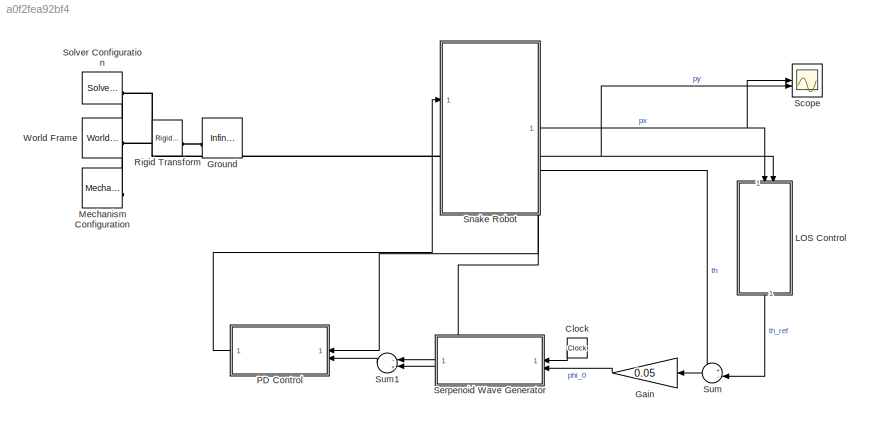
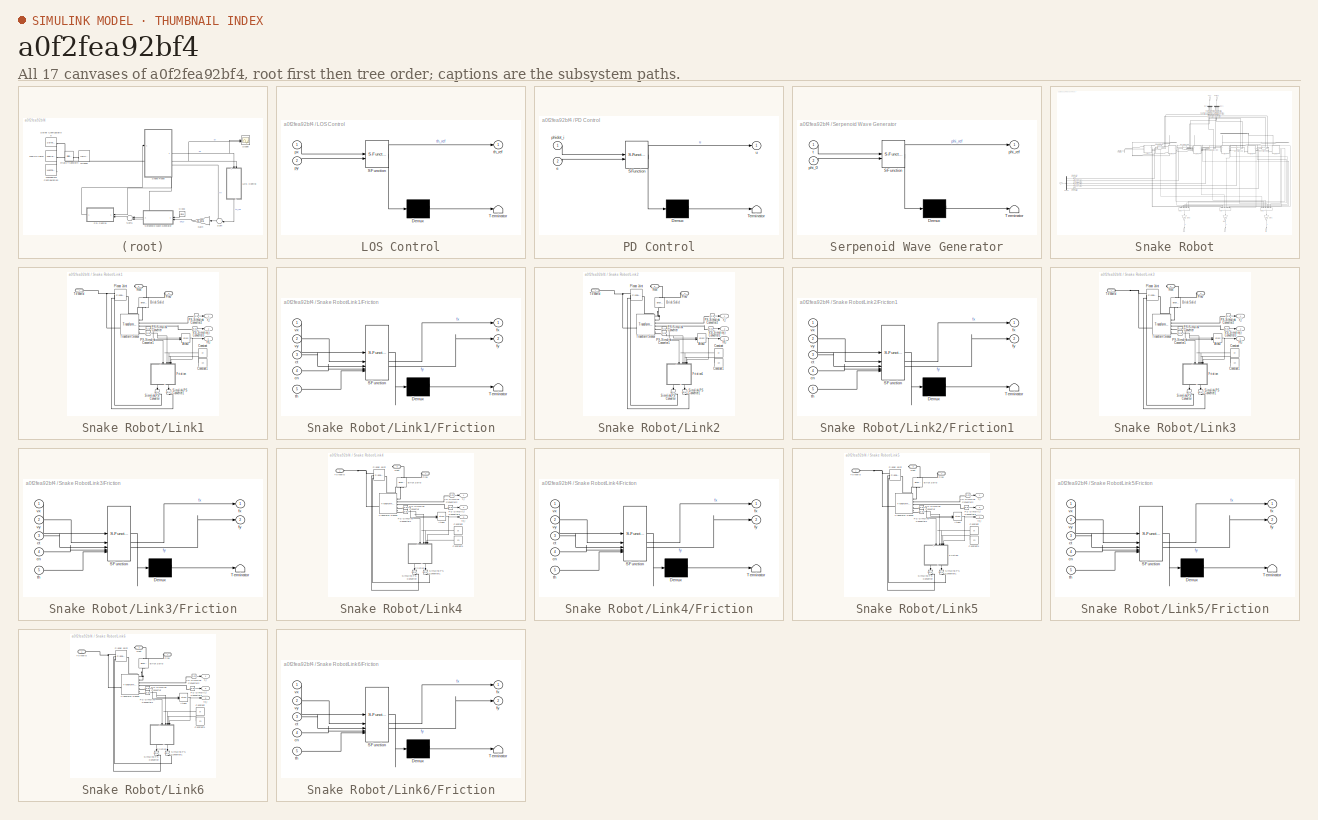
[diagram: thumbnail index - all 17 canvases of the model, root first then tree order]
MODEL slx_a0f2fea92bf4
KIND model
CONFIG AbsTol = auto
CONFIG EnableMultiTasking = off
CONFIG FixedStep = auto
CONFIG MaxStep = auto
CONFIG MinStep = auto
CONFIG RelTol = auto
CONFIG SampleTimeConstraint = Unconstrained
CONFIG SolverName = ode23tb
CONFIG StartTime = 0.0
CONFIG StopTime = 1500
BLOCK [Clock] Clock
  NameLocation = top
BLOCK [Gain] Gain
  Gain = 0.05
  NameLocation = top
BLOCK [Reference] Ground  REF=sm_lib/Curves and Surfaces/Infinite Plane
  SourceBlock = sm_lib/Curves and Surfaces/Infinite Plane
  SourceType = Infinite Plane
BLOCK [SubSystem] LOS Control
  ErrorFcn = Stateflow.Translate.translate
  NameLocation = right
  PermitHierarchicalResolution = ExplicitOnly
  SFBlockType = MATLAB Function
  TreatAsAtomicUnit = on
BLOCK [Demux] LOS Control/ Demux 
  Outputs = 1
BLOCK [S-Function] LOS Control/ SFunction 
  EnableBusSupport = on
  FunctionName = sf_sfun
  PortCounts = [2 2]
  SFcnIsStateOwnerBlock = off
  SFunctionDeploymentMode = off
  Tag = Stateflow S-Function 4
BLOCK [Terminator] LOS Control/ Terminator 
BLOCK [Inport] LOS Control/px
BLOCK [Inport] LOS Control/py
  Port = 2
BLOCK [Outport] LOS Control/th_ref
BLOCK [Reference] Mechanism Configuration  REF=sm_lib/Utilities/Mechanism
Configuration
  SourceBlock = sm_lib/Utilities/Mechanism\nConfiguration
  SourceType = Mechanism\nConfiguration
BLOCK [SubSystem] PD Control
  ErrorFcn = Stateflow.Translate.translate
  PermitHierarchicalResolution = ExplicitOnly
  SFBlockType = MATLAB Function
  TreatAsAtomicUnit = on
BLOCK [Demux] PD Control/ Demux 
  Outputs = 1
BLOCK [S-Function] PD Control/ SFunction 
  EnableBusSupport = on
  FunctionName = sf_sfun
  PortCounts = [2 2]
  SFcnIsStateOwnerBlock = off
  SFunctionDeploymentMode = off
  Tag = Stateflow S-Function 6
BLOCK [Terminator] PD Control/ Terminator 
BLOCK [Inport] PD Control/e
  Port = 2
BLOCK [Inport] PD Control/phidot_i
BLOCK [Outport] PD Control/u
BLOCK [Reference] Rigid Transform  REF=sm_lib/Frames and
Transforms/Rigid
Transform
  SourceBlock = sm_lib/Frames and\nTransforms/Rigid\nTransform
  SourceType = Rigid\nTransform
BLOCK [Scope] Scope
  Floating = off
  NumInputPorts = 2
  ScopeSpecificationString = Simulink.scopes.TimeScopeBlockCfg('CurrentConfiguration', extmgr.ConfigurationSet(extmgr.Configuration('Core','General UI',true),extmgr.Configuration('Core','Source UI',true),extmgr.Configuration('Sources','WiredSimulink',true),extmgr.Configuration('Visuals','Time Domain',true,'SerializedDisplays',{struct('MinYLimReal','-1.56577','MaxYLimReal','13.09189','YLabelReal','','MinYLimMag','0.00000','Max...<+1532ch>
BLOCK [SubSystem] Serpenoid Wave Generator
  ErrorFcn = Stateflow.Translate.translate
  PermitHierarchicalResolution = ExplicitOnly
  SFBlockType = MATLAB Function
  TreatAsAtomicUnit = on
BLOCK [Demux] Serpenoid Wave Generator/ Demux 
  Outputs = 1
BLOCK [S-Function] Serpenoid Wave Generator/ SFunction 
  EnableBusSupport = on
  FunctionName = sf_sfun
  PortCounts = [2 2]
  SFcnIsStateOwnerBlock = off
  SFunctionDeploymentMode = off
  Tag = Stateflow S-Function 5
BLOCK [Terminator] Serpenoid Wave Generator/ Terminator 
BLOCK [Inport] Serpenoid Wave Generator/phi_0
  Port = 2
BLOCK [Outport] Serpenoid Wave Generator/phi_ref
BLOCK [Inport] Serpenoid Wave Generator/t
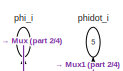
[diagram: Snake Robot - part 1/4, top center region]
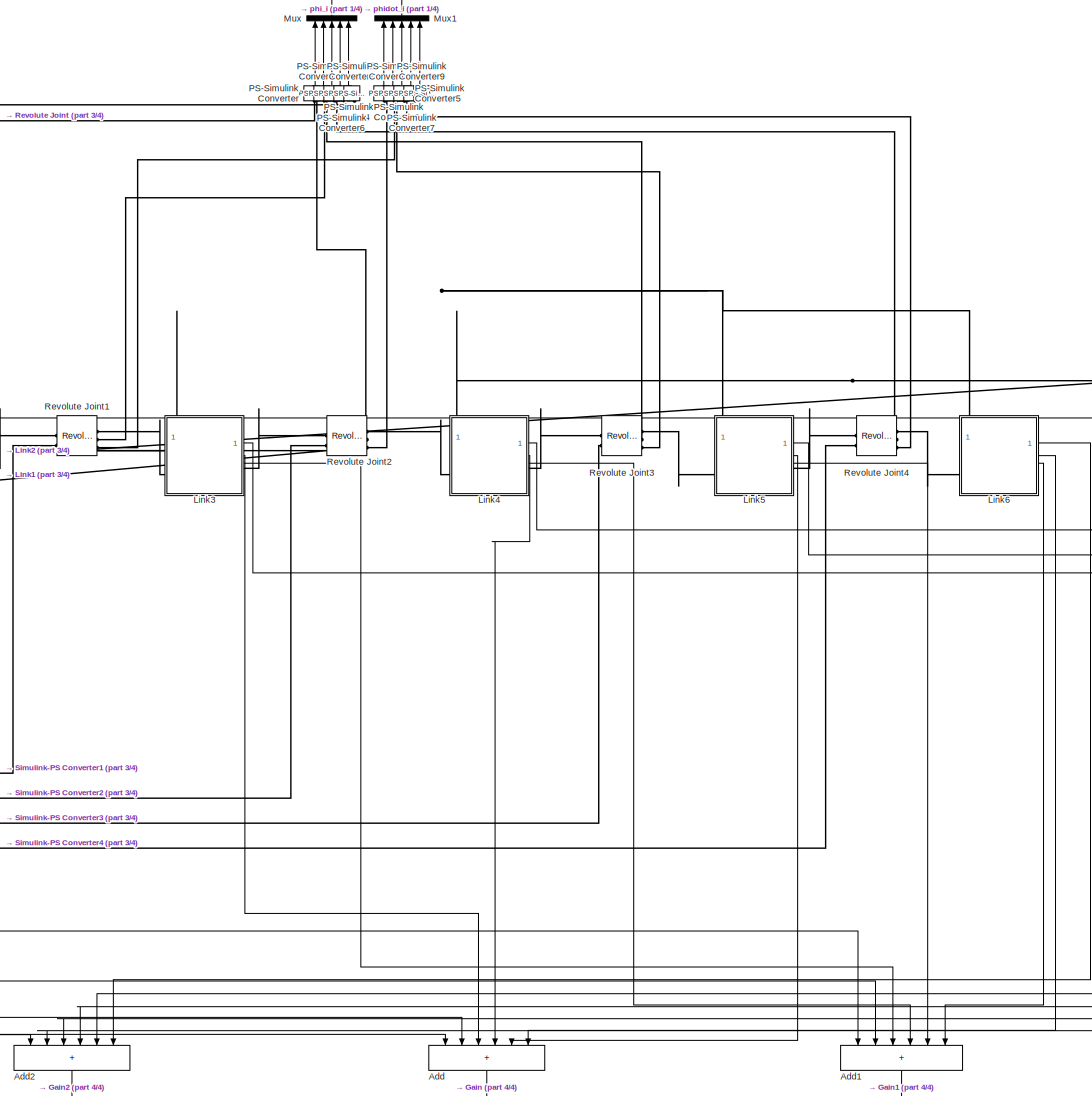
[diagram: Snake Robot - part 2/4, right side, full height]
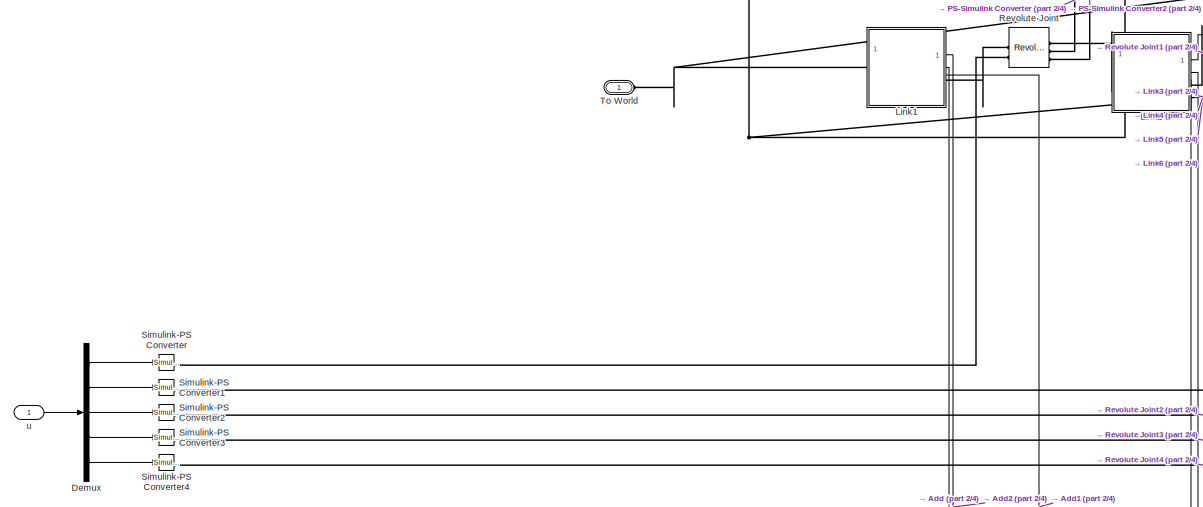
[diagram: Snake Robot - part 3/4, middle left region]
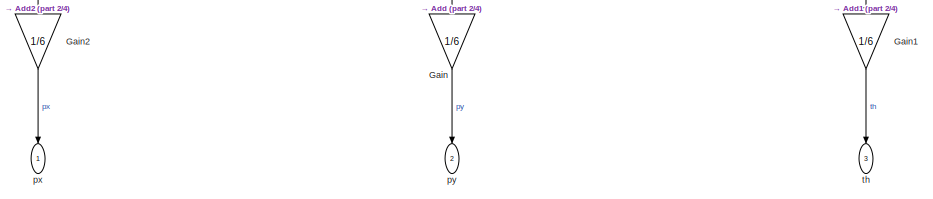
[diagram: Snake Robot - part 4/4, bottom right region]
BLOCK [SubSystem] Snake Robot
  NameLocation = top
  PortSchema = {"entries":[{"content":{"sides":[{"content":{"connectorIds":["LConn1","In1"]},"type":"ConnectorPlacement.EquallySpacedRectSide","uuid":"f118844c-c09d-4bd9-95d4-19a15b2cae93"},{"content":{"connectorIds":["Out1","Out2","Out3"],"side":"RIGHT"},"type":"ConnectorPlacement.EquallySpacedRectSide","uuid":"4d537997-3d0c-4818-9585-9dbdf74e2d6d"},{"content":{"side":"TOP"},"type":"ConnectorPlacement.EquallySp...<+402ch>
BLOCK [Sum] Snake Robot/Add
  IconShape = rectangular
  Inputs = ++++++
  NameLocation = left
BLOCK [Sum] Snake Robot/Add1
  IconShape = rectangular
  Inputs = ++++++
  NameLocation = left
BLOCK [Sum] Snake Robot/Add2
  IconShape = rectangular
  Inputs = ++++++
  NameLocation = left
BLOCK [Demux] Snake Robot/Demux
  Outputs = 5
BLOCK [Gain] Snake Robot/Gain
  Gain = 1/6
  NameLocation = left
BLOCK [Gain] Snake Robot/Gain1
  Gain = 1/6
  NameLocation = left
BLOCK [Gain] Snake Robot/Gain2
  Gain = 1/6
  NameLocation = left
BLOCK [SubSystem] Snake Robot/Link1
BLOCK [Trigonometry] Snake Robot/Link1/Atan2
  Operator = atan2
BLOCK [Reference] Snake Robot/Link1/Brick Solid  REF=sm_lib/Body Elements/Brick Solid
  NameLocation = left
  SourceBlock = sm_lib/Body Elements/Brick Solid
  SourceType = Brick Solid
BLOCK [Constant] Snake Robot/Link1/Constant
  NameLocation = top
  Value = ct
BLOCK [Constant] Snake Robot/Link1/Constant1
  NameLocation = top
  Value = cn
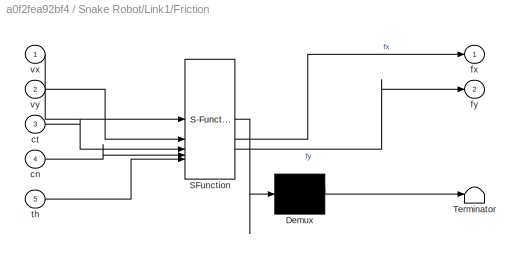
BLOCK [SubSystem] Snake Robot/Link1/Friction
  ErrorFcn = Stateflow.Translate.translate
  NameLocation = left
  PermitHierarchicalResolution = ExplicitOnly
  SFBlockType = MATLAB Function
  TreatAsAtomicUnit = on
BLOCK [Demux] Snake Robot/Link1/Friction/ Demux 
  Outputs = 1
BLOCK [S-Function] Snake Robot/Link1/Friction/ SFunction 
  EnableBusSupport = on
  FunctionName = sf_sfun
  PortCounts = [5 3]
  SFcnIsStateOwnerBlock = off
  SFunctionDeploymentMode = off
  Tag = Stateflow S-Function 2
BLOCK [Terminator] Snake Robot/Link1/Friction/ Terminator 
BLOCK [Inport] Snake Robot/Link1/Friction/cn
  Port = 4
BLOCK [Inport] Snake Robot/Link1/Friction/ct
  Port = 3
BLOCK [Outport] Snake Robot/Link1/Friction/fx
BLOCK [Outport] Snake Robot/Link1/Friction/fy
  Port = 2
BLOCK [Inport] Snake Robot/Link1/Friction/th
  Port = 5
BLOCK [Inport] Snake Robot/Link1/Friction/vx
BLOCK [Inport] Snake Robot/Link1/Friction/vy
  Port = 2
BLOCK [PMIOPort] Snake Robot/Link1/Next
  Port = 3
  Side = Right
BLOCK [Reference] Snake Robot/Link1/PS-Simulink Converter  REF=nesl_utility/PS-Simulink
Converter
  SourceBlock = nesl_utility/PS-Simulink\nConverter
  SourceType = PS-Simulink\nConverter
BLOCK [Reference] Snake Robot/Link1/PS-Simulink Converter1  REF=nesl_utility/PS-Simulink
Converter
  SourceBlock = nesl_utility/PS-Simulink\nConverter
  SourceType = PS-Simulink\nConverter
BLOCK [Reference] Snake Robot/Link1/PS-Simulink Converter2  REF=nesl_utility/PS-Simulink
Converter
  SourceBlock = nesl_utility/PS-Simulink\nConverter
  SourceType = PS-Simulink\nConverter
BLOCK [Reference] Snake Robot/Link1/PS-Simulink Converter3  REF=nesl_utility/PS-Simulink
Converter
  SourceBlock = nesl_utility/PS-Simulink\nConverter
  SourceType = PS-Simulink\nConverter
BLOCK [Reference] Snake Robot/Link1/Planar Joint  REF=sm_lib/Joints/Planar Joint
  SourceBlock = sm_lib/Joints/Planar Joint
  SourceType = Planar Joint
BLOCK [PMIOPort] Snake Robot/Link1/Prev
  NameLocation = top
  Port = 2
  Side = Left
BLOCK [Reference] Snake Robot/Link1/Simulink-PS Converter  REF=nesl_utility/Simulink-PS
Converter
  NameLocation = left
  SourceBlock = nesl_utility/Simulink-PS\nConverter
  SourceType = Simulink-PS\nConverter
BLOCK [Reference] Snake Robot/Link1/Simulink-PS Converter1  REF=nesl_utility/Simulink-PS
Converter
  NameLocation = left
  SourceBlock = nesl_utility/Simulink-PS\nConverter
  SourceType = Simulink-PS\nConverter
BLOCK [PMIOPort] Snake Robot/Link1/To World
  Side = Left
BLOCK [Reference] Snake Robot/Link1/Transform Sensor  REF=sm_lib/Frames and
Transforms/Transform
Sensor
  SourceBlock = sm_lib/Frames and\nTransforms/Transform\nSensor
  SourceType = Transform\nSensor
BLOCK [Outport] Snake Robot/Link1/th_i
  Port = 3
BLOCK [Outport] Snake Robot/Link1/x_i
BLOCK [Outport] Snake Robot/Link1/y_i
  Port = 2
BLOCK [SubSystem] Snake Robot/Link2
BLOCK [Trigonometry] Snake Robot/Link2/Atan2
  Operator = atan2
BLOCK [Reference] Snake Robot/Link2/Brick Solid  REF=sm_lib/Body Elements/Brick Solid
  NameLocation = left
  SourceBlock = sm_lib/Body Elements/Brick Solid
  SourceType = Brick Solid
BLOCK [Constant] Snake Robot/Link2/Constant
  NameLocation = top
  Value = ct
BLOCK [Constant] Snake Robot/Link2/Constant1
  NameLocation = top
  Value = cn
BLOCK [SubSystem] Snake Robot/Link2/Friction1
  ErrorFcn = Stateflow.Translate.translate
  NameLocation = left
  PermitHierarchicalResolution = ExplicitOnly
  SFBlockType = MATLAB Function
  TreatAsAtomicUnit = on
BLOCK [Demux] Snake Robot/Link2/Friction1/ Demux 
  Outputs = 1
BLOCK [S-Function] Snake Robot/Link2/Friction1/ SFunction 
  EnableBusSupport = on
  FunctionName = sf_sfun
  PortCounts = [5 3]
  SFcnIsStateOwnerBlock = off
  SFunctionDeploymentMode = off
  Tag = Stateflow S-Function 10
BLOCK [Terminator] Snake Robot/Link2/Friction1/ Terminator 
BLOCK [Inport] Snake Robot/Link2/Friction1/cn
  Port = 4
BLOCK [Inport] Snake Robot/Link2/Friction1/ct
  Port = 3
BLOCK [Outport] Snake Robot/Link2/Friction1/fx
BLOCK [Outport] Snake Robot/Link2/Friction1/fy
  Port = 2
BLOCK [Inport] Snake Robot/Link2/Friction1/th
  Port = 5
BLOCK [Inport] Snake Robot/Link2/Friction1/vx
BLOCK [Inport] Snake Robot/Link2/Friction1/vy
  Port = 2
BLOCK [PMIOPort] Snake Robot/Link2/Next
  Port = 3
  Side = Right
BLOCK [Reference] Snake Robot/Link2/PS-Simulink Converter  REF=nesl_utility/PS-Simulink
Converter
  SourceBlock = nesl_utility/PS-Simulink\nConverter
  SourceType = PS-Simulink\nConverter
BLOCK [Reference] Snake Robot/Link2/PS-Simulink Converter1  REF=nesl_utility/PS-Simulink
Converter
  SourceBlock = nesl_utility/PS-Simulink\nConverter
  SourceType = PS-Simulink\nConverter
BLOCK [Reference] Snake Robot/Link2/PS-Simulink Converter2  REF=nesl_utility/PS-Simulink
Converter
  SourceBlock = nesl_utility/PS-Simulink\nConverter
  SourceType = PS-Simulink\nConverter
BLOCK [Reference] Snake Robot/Link2/PS-Simulink Converter3  REF=nesl_utility/PS-Simulink
Converter
  SourceBlock = nesl_utility/PS-Simulink\nConverter
  SourceType = PS-Simulink\nConverter
BLOCK [Reference] Snake Robot/Link2/Planar Joint  REF=sm_lib/Joints/Planar Joint
  SourceBlock = sm_lib/Joints/Planar Joint
  SourceType = Planar Joint
BLOCK [PMIOPort] Snake Robot/Link2/Prev
  NameLocation = top
  Port = 2
  Side = Left
BLOCK [Reference] Snake Robot/Link2/Simulink-PS Converter  REF=nesl_utility/Simulink-PS
Converter
  NameLocation = left
  SourceBlock = nesl_utility/Simulink-PS\nConverter
  SourceType = Simulink-PS\nConverter
BLOCK [Reference] Snake Robot/Link2/Simulink-PS Converter1  REF=nesl_utility/Simulink-PS
Converter
  NameLocation = left
  SourceBlock = nesl_utility/Simulink-PS\nConverter
  SourceType = Simulink-PS\nConverter
BLOCK [PMIOPort] Snake Robot/Link2/To World
  Side = Left
BLOCK [Reference] Snake Robot/Link2/Transform Sensor  REF=sm_lib/Frames and
Transforms/Transform
Sensor
  SourceBlock = sm_lib/Frames and\nTransforms/Transform\nSensor
  SourceType = Transform\nSensor
BLOCK [Outport] Snake Robot/Link2/th_i
  Port = 3
BLOCK [Outport] Snake Robot/Link2/x_i
BLOCK [Outport] Snake Robot/Link2/y_i
  Port = 2
BLOCK [SubSystem] Snake Robot/Link3
BLOCK [Trigonometry] Snake Robot/Link3/Atan2
  Operator = atan2
BLOCK [Reference] Snake Robot/Link3/Brick Solid  REF=sm_lib/Body Elements/Brick Solid
  NameLocation = left
  SourceBlock = sm_lib/Body Elements/Brick Solid
  SourceType = Brick Solid
BLOCK [Constant] Snake Robot/Link3/Constant
  NameLocation = top
  Value = ct
BLOCK [Constant] Snake Robot/Link3/Constant1
  NameLocation = top
  Value = cn
BLOCK [SubSystem] Snake Robot/Link3/Friction
  ErrorFcn = Stateflow.Translate.translate
  NameLocation = left
  PermitHierarchicalResolution = ExplicitOnly
  SFBlockType = MATLAB Function
  TreatAsAtomicUnit = on
BLOCK [Demux] Snake Robot/Link3/Friction/ Demux 
  Outputs = 1
BLOCK [S-Function] Snake Robot/Link3/Friction/ SFunction 
  EnableBusSupport = on
  FunctionName = sf_sfun
  PortCounts = [5 3]
  SFcnIsStateOwnerBlock = off
  SFunctionDeploymentMode = off
  Tag = Stateflow S-Function 1
BLOCK [Terminator] Snake Robot/Link3/Friction/ Terminator 
BLOCK [Inport] Snake Robot/Link3/Friction/cn
  Port = 4
BLOCK [Inport] Snake Robot/Link3/Friction/ct
  Port = 3
BLOCK [Outport] Snake Robot/Link3/Friction/fx
BLOCK [Outport] Snake Robot/Link3/Friction/fy
  Port = 2
BLOCK [Inport] Snake Robot/Link3/Friction/th
  Port = 5
BLOCK [Inport] Snake Robot/Link3/Friction/vx
BLOCK [Inport] Snake Robot/Link3/Friction/vy
  Port = 2
BLOCK [PMIOPort] Snake Robot/Link3/Next
  Port = 3
  Side = Right
BLOCK [Reference] Snake Robot/Link3/PS-Simulink Converter  REF=nesl_utility/PS-Simulink
Converter
  SourceBlock = nesl_utility/PS-Simulink\nConverter
  SourceType = PS-Simulink\nConverter
BLOCK [Reference] Snake Robot/Link3/PS-Simulink Converter1  REF=nesl_utility/PS-Simulink
Converter
  SourceBlock = nesl_utility/PS-Simulink\nConverter
  SourceType = PS-Simulink\nConverter
BLOCK [Reference] Snake Robot/Link3/PS-Simulink Converter2  REF=nesl_utility/PS-Simulink
Converter
  SourceBlock = nesl_utility/PS-Simulink\nConverter
  SourceType = PS-Simulink\nConverter
BLOCK [Reference] Snake Robot/Link3/PS-Simulink Converter3  REF=nesl_utility/PS-Simulink
Converter
  SourceBlock = nesl_utility/PS-Simulink\nConverter
  SourceType = PS-Simulink\nConverter
BLOCK [Reference] Snake Robot/Link3/Planar Joint  REF=sm_lib/Joints/Planar Joint
  SourceBlock = sm_lib/Joints/Planar Joint
  SourceType = Planar Joint
BLOCK [PMIOPort] Snake Robot/Link3/Prev
  NameLocation = top
  Port = 2
  Side = Left
BLOCK [Reference] Snake Robot/Link3/Simulink-PS Converter  REF=nesl_utility/Simulink-PS
Converter
  NameLocation = left
  SourceBlock = nesl_utility/Simulink-PS\nConverter
  SourceType = Simulink-PS\nConverter
BLOCK [Reference] Snake Robot/Link3/Simulink-PS Converter1  REF=nesl_utility/Simulink-PS
Converter
  NameLocation = left
  SourceBlock = nesl_utility/Simulink-PS\nConverter
  SourceType = Simulink-PS\nConverter
BLOCK [PMIOPort] Snake Robot/Link3/To World
  Side = Left
BLOCK [Reference] Snake Robot/Link3/Transform Sensor  REF=sm_lib/Frames and
Transforms/Transform
Sensor
  SourceBlock = sm_lib/Frames and\nTransforms/Transform\nSensor
  SourceType = Transform\nSensor
BLOCK [Outport] Snake Robot/Link3/th_i
  Port = 3
BLOCK [Outport] Snake Robot/Link3/x_i
BLOCK [Outport] Snake Robot/Link3/y_i
  Port = 2
BLOCK [SubSystem] Snake Robot/Link4
BLOCK [Trigonometry] Snake Robot/Link4/Atan2
  Operator = atan2
BLOCK [Reference] Snake Robot/Link4/Brick Solid  REF=sm_lib/Body Elements/Brick Solid
  NameLocation = left
  SourceBlock = sm_lib/Body Elements/Brick Solid
  SourceType = Brick Solid
BLOCK [Constant] Snake Robot/Link4/Constant
  NameLocation = top
  Value = ct
BLOCK [Constant] Snake Robot/Link4/Constant1
  NameLocation = top
  Value = cn
BLOCK [SubSystem] Snake Robot/Link4/Friction
  ErrorFcn = Stateflow.Translate.translate
  NameLocation = left
  PermitHierarchicalResolution = ExplicitOnly
  SFBlockType = MATLAB Function
  TreatAsAtomicUnit = on
BLOCK [Demux] Snake Robot/Link4/Friction/ Demux 
  Outputs = 1
BLOCK [S-Function] Snake Robot/Link4/Friction/ SFunction 
  EnableBusSupport = on
  FunctionName = sf_sfun
  PortCounts = [5 3]
  SFcnIsStateOwnerBlock = off
  SFunctionDeploymentMode = off
  Tag = Stateflow S-Function 3
BLOCK [Terminator] Snake Robot/Link4/Friction/ Terminator 
BLOCK [Inport] Snake Robot/Link4/Friction/cn
  Port = 4
BLOCK [Inport] Snake Robot/Link4/Friction/ct
  Port = 3
BLOCK [Outport] Snake Robot/Link4/Friction/fx
BLOCK [Outport] Snake Robot/Link4/Friction/fy
  Port = 2
BLOCK [Inport] Snake Robot/Link4/Friction/th
  Port = 5
BLOCK [Inport] Snake Robot/Link4/Friction/vx
BLOCK [Inport] Snake Robot/Link4/Friction/vy
  Port = 2
BLOCK [PMIOPort] Snake Robot/Link4/Next
  Port = 3
  Side = Right
BLOCK [Reference] Snake Robot/Link4/PS-Simulink Converter  REF=nesl_utility/PS-Simulink
Converter
  SourceBlock = nesl_utility/PS-Simulink\nConverter
  SourceType = PS-Simulink\nConverter
BLOCK [Reference] Snake Robot/Link4/PS-Simulink Converter1  REF=nesl_utility/PS-Simulink
Converter
  SourceBlock = nesl_utility/PS-Simulink\nConverter
  SourceType = PS-Simulink\nConverter
BLOCK [Reference] Snake Robot/Link4/PS-Simulink Converter2  REF=nesl_utility/PS-Simulink
Converter
  SourceBlock = nesl_utility/PS-Simulink\nConverter
  SourceType = PS-Simulink\nConverter
BLOCK [Reference] Snake Robot/Link4/PS-Simulink Converter3  REF=nesl_utility/PS-Simulink
Converter
  SourceBlock = nesl_utility/PS-Simulink\nConverter
  SourceType = PS-Simulink\nConverter
BLOCK [Reference] Snake Robot/Link4/Planar Joint  REF=sm_lib/Joints/Planar Joint
  SourceBlock = sm_lib/Joints/Planar Joint
  SourceType = Planar Joint
BLOCK [PMIOPort] Snake Robot/Link4/Prev
  NameLocation = top
  Port = 2
  Side = Left
BLOCK [Reference] Snake Robot/Link4/Simulink-PS Converter  REF=nesl_utility/Simulink-PS
Converter
  NameLocation = left
  SourceBlock = nesl_utility/Simulink-PS\nConverter
  SourceType = Simulink-PS\nConverter
BLOCK [Reference] Snake Robot/Link4/Simulink-PS Converter1  REF=nesl_utility/Simulink-PS
Converter
  NameLocation = left
  SourceBlock = nesl_utility/Simulink-PS\nConverter
  SourceType = Simulink-PS\nConverter
BLOCK [PMIOPort] Snake Robot/Link4/To World
  Side = Left
BLOCK [Reference] Snake Robot/Link4/Transform Sensor  REF=sm_lib/Frames and
Transforms/Transform
Sensor
  SourceBlock = sm_lib/Frames and\nTransforms/Transform\nSensor
  SourceType = Transform\nSensor
BLOCK [Outport] Snake Robot/Link4/th_i
  Port = 3
BLOCK [Outport] Snake Robot/Link4/x_i
BLOCK [Outport] Snake Robot/Link4/y_i
  Port = 2
BLOCK [SubSystem] Snake Robot/Link5
BLOCK [Trigonometry] Snake Robot/Link5/Atan2
  Operator = atan2
BLOCK [Reference] Snake Robot/Link5/Brick Solid  REF=sm_lib/Body Elements/Brick Solid
  NameLocation = left
  SourceBlock = sm_lib/Body Elements/Brick Solid
  SourceType = Brick Solid
BLOCK [Constant] Snake Robot/Link5/Constant
  NameLocation = top
  Value = ct
BLOCK [Constant] Snake Robot/Link5/Constant1
  NameLocation = top
  Value = cn
BLOCK [SubSystem] Snake Robot/Link5/Friction
  ErrorFcn = Stateflow.Translate.translate
  NameLocation = left
  PermitHierarchicalResolution = ExplicitOnly
  SFBlockType = MATLAB Function
  TreatAsAtomicUnit = on
BLOCK [Demux] Snake Robot/Link5/Friction/ Demux 
  Outputs = 1
BLOCK [S-Function] Snake Robot/Link5/Friction/ SFunction 
  EnableBusSupport = on
  FunctionName = sf_sfun
  PortCounts = [5 3]
  SFcnIsStateOwnerBlock = off
  SFunctionDeploymentMode = off
  Tag = Stateflow S-Function 7
BLOCK [Terminator] Snake Robot/Link5/Friction/ Terminator 
BLOCK [Inport] Snake Robot/Link5/Friction/cn
  Port = 4
BLOCK [Inport] Snake Robot/Link5/Friction/ct
  Port = 3
BLOCK [Outport] Snake Robot/Link5/Friction/fx
BLOCK [Outport] Snake Robot/Link5/Friction/fy
  Port = 2
BLOCK [Inport] Snake Robot/Link5/Friction/th
  Port = 5
BLOCK [Inport] Snake Robot/Link5/Friction/vx
BLOCK [Inport] Snake Robot/Link5/Friction/vy
  Port = 2
BLOCK [PMIOPort] Snake Robot/Link5/Next
  Port = 3
  Side = Right
BLOCK [Reference] Snake Robot/Link5/PS-Simulink Converter  REF=nesl_utility/PS-Simulink
Converter
  SourceBlock = nesl_utility/PS-Simulink\nConverter
  SourceType = PS-Simulink\nConverter
BLOCK [Reference] Snake Robot/Link5/PS-Simulink Converter1  REF=nesl_utility/PS-Simulink
Converter
  SourceBlock = nesl_utility/PS-Simulink\nConverter
  SourceType = PS-Simulink\nConverter
BLOCK [Reference] Snake Robot/Link5/PS-Simulink Converter2  REF=nesl_utility/PS-Simulink
Converter
  SourceBlock = nesl_utility/PS-Simulink\nConverter
  SourceType = PS-Simulink\nConverter
BLOCK [Reference] Snake Robot/Link5/PS-Simulink Converter3  REF=nesl_utility/PS-Simulink
Converter
  SourceBlock = nesl_utility/PS-Simulink\nConverter
  SourceType = PS-Simulink\nConverter
BLOCK [Reference] Snake Robot/Link5/Planar Joint  REF=sm_lib/Joints/Planar Joint
  SourceBlock = sm_lib/Joints/Planar Joint
  SourceType = Planar Joint
BLOCK [PMIOPort] Snake Robot/Link5/Prev
  NameLocation = top
  Port = 2
  Side = Left
BLOCK [Reference] Snake Robot/Link5/Simulink-PS Converter  REF=nesl_utility/Simulink-PS
Converter
  NameLocation = left
  SourceBlock = nesl_utility/Simulink-PS\nConverter
  SourceType = Simulink-PS\nConverter
BLOCK [Reference] Snake Robot/Link5/Simulink-PS Converter1  REF=nesl_utility/Simulink-PS
Converter
  NameLocation = left
  SourceBlock = nesl_utility/Simulink-PS\nConverter
  SourceType = Simulink-PS\nConverter
BLOCK [PMIOPort] Snake Robot/Link5/To World
  Side = Left
BLOCK [Reference] Snake Robot/Link5/Transform Sensor  REF=sm_lib/Frames and
Transforms/Transform
Sensor
  SourceBlock = sm_lib/Frames and\nTransforms/Transform\nSensor
  SourceType = Transform\nSensor
BLOCK [Outport] Snake Robot/Link5/th_i
  Port = 3
BLOCK [Outport] Snake Robot/Link5/x_i
BLOCK [Outport] Snake Robot/Link5/y_i
  Port = 2
BLOCK [SubSystem] Snake Robot/Link6
BLOCK [Trigonometry] Snake Robot/Link6/Atan2
  Operator = atan2
BLOCK [Reference] Snake Robot/Link6/Brick Solid  REF=sm_lib/Body Elements/Brick Solid
  NameLocation = left
  SourceBlock = sm_lib/Body Elements/Brick Solid
  SourceType = Brick Solid
BLOCK [Constant] Snake Robot/Link6/Constant
  NameLocation = top
  Value = ct
BLOCK [Constant] Snake Robot/Link6/Constant1
  NameLocation = top
  Value = cn
BLOCK [SubSystem] Snake Robot/Link6/Friction
  ErrorFcn = Stateflow.Translate.translate
  NameLocation = left
  PermitHierarchicalResolution = ExplicitOnly
  SFBlockType = MATLAB Function
  TreatAsAtomicUnit = on
BLOCK [Demux] Snake Robot/Link6/Friction/ Demux 
  Outputs = 1
BLOCK [S-Function] Snake Robot/Link6/Friction/ SFunction 
  EnableBusSupport = on
  FunctionName = sf_sfun
  PortCounts = [5 3]
  SFcnIsStateOwnerBlock = off
  SFunctionDeploymentMode = off
  Tag = Stateflow S-Function 8
BLOCK [Terminator] Snake Robot/Link6/Friction/ Terminator 
BLOCK [Inport] Snake Robot/Link6/Friction/cn
  Port = 4
BLOCK [Inport] Snake Robot/Link6/Friction/ct
  Port = 3
BLOCK [Outport] Snake Robot/Link6/Friction/fx
BLOCK [Outport] Snake Robot/Link6/Friction/fy
  Port = 2
BLOCK [Inport] Snake Robot/Link6/Friction/th
  Port = 5
BLOCK [Inport] Snake Robot/Link6/Friction/vx
BLOCK [Inport] Snake Robot/Link6/Friction/vy
  Port = 2
BLOCK [PMIOPort] Snake Robot/Link6/Next
  Port = 3
  Side = Right
BLOCK [Reference] Snake Robot/Link6/PS-Simulink Converter  REF=nesl_utility/PS-Simulink
Converter
  SourceBlock = nesl_utility/PS-Simulink\nConverter
  SourceType = PS-Simulink\nConverter
BLOCK [Reference] Snake Robot/Link6/PS-Simulink Converter1  REF=nesl_utility/PS-Simulink
Converter
  SourceBlock = nesl_utility/PS-Simulink\nConverter
  SourceType = PS-Simulink\nConverter
BLOCK [Reference] Snake Robot/Link6/PS-Simulink Converter2  REF=nesl_utility/PS-Simulink
Converter
  SourceBlock = nesl_utility/PS-Simulink\nConverter
  SourceType = PS-Simulink\nConverter
BLOCK [Reference] Snake Robot/Link6/PS-Simulink Converter3  REF=nesl_utility/PS-Simulink
Converter
  SourceBlock = nesl_utility/PS-Simulink\nConverter
  SourceType = PS-Simulink\nConverter
BLOCK [Reference] Snake Robot/Link6/Planar Joint  REF=sm_lib/Joints/Planar Joint
  SourceBlock = sm_lib/Joints/Planar Joint
  SourceType = Planar Joint
BLOCK [PMIOPort] Snake Robot/Link6/Prev
  NameLocation = top
  Port = 2
  Side = Left
BLOCK [Reference] Snake Robot/Link6/Simulink-PS Converter  REF=nesl_utility/Simulink-PS
Converter
  NameLocation = left
  SourceBlock = nesl_utility/Simulink-PS\nConverter
  SourceType = Simulink-PS\nConverter
BLOCK [Reference] Snake Robot/Link6/Simulink-PS Converter1  REF=nesl_utility/Simulink-PS
Converter
  NameLocation = left
  SourceBlock = nesl_utility/Simulink-PS\nConverter
  SourceType = Simulink-PS\nConverter
BLOCK [PMIOPort] Snake Robot/Link6/To World
  Side = Left
BLOCK [Reference] Snake Robot/Link6/Transform Sensor  REF=sm_lib/Frames and
Transforms/Transform
Sensor
  SourceBlock = sm_lib/Frames and\nTransforms/Transform\nSensor
  SourceType = Transform\nSensor
BLOCK [Outport] Snake Robot/Link6/th_i
  Port = 3
BLOCK [Outport] Snake Robot/Link6/x_i
BLOCK [Outport] Snake Robot/Link6/y_i
  Port = 2
BLOCK [Mux] Snake Robot/Mux
  DisplayOption = bar
  Inputs = 5
  NameLocation = right
BLOCK [Mux] Snake Robot/Mux1
  DisplayOption = bar
  Inputs = 5
  NameLocation = right
BLOCK [Reference] Snake Robot/PS-Simulink Converter  REF=nesl_utility/PS-Simulink
Converter
  NameLocation = right
  SourceBlock = nesl_utility/PS-Simulink\nConverter
  SourceType = PS-Simulink\nConverter
BLOCK [Reference] Snake Robot/PS-Simulink Converter1  REF=nesl_utility/PS-Simulink
Converter
  NameLocation = right
  SourceBlock = nesl_utility/PS-Simulink\nConverter
  SourceType = PS-Simulink\nConverter
BLOCK [Reference] Snake Robot/PS-Simulink Converter2  REF=nesl_utility/PS-Simulink
Converter
  NameLocation = right
  SourceBlock = nesl_utility/PS-Simulink\nConverter
  SourceType = PS-Simulink\nConverter
BLOCK [Reference] Snake Robot/PS-Simulink Converter3  REF=nesl_utility/PS-Simulink
Converter
  NameLocation = right
  SourceBlock = nesl_utility/PS-Simulink\nConverter
  SourceType = PS-Simulink\nConverter
BLOCK [Reference] Snake Robot/PS-Simulink Converter4  REF=nesl_utility/PS-Simulink
Converter
  NameLocation = right
  SourceBlock = nesl_utility/PS-Simulink\nConverter
  SourceType = PS-Simulink\nConverter
BLOCK [Reference] Snake Robot/PS-Simulink Converter5  REF=nesl_utility/PS-Simulink
Converter
  NameLocation = right
  SourceBlock = nesl_utility/PS-Simulink\nConverter
  SourceType = PS-Simulink\nConverter
BLOCK [Reference] Snake Robot/PS-Simulink Converter6  REF=nesl_utility/PS-Simulink
Converter
  NameLocation = right
  SourceBlock = nesl_utility/PS-Simulink\nConverter
  SourceType = PS-Simulink\nConverter
BLOCK [Reference] Snake Robot/PS-Simulink Converter7  REF=nesl_utility/PS-Simulink
Converter
  NameLocation = right
  SourceBlock = nesl_utility/PS-Simulink\nConverter
  SourceType = PS-Simulink\nConverter
BLOCK [Reference] Snake Robot/PS-Simulink Converter8  REF=nesl_utility/PS-Simulink
Converter
  NameLocation = right
  SourceBlock = nesl_utility/PS-Simulink\nConverter
  SourceType = PS-Simulink\nConverter
BLOCK [Reference] Snake Robot/PS-Simulink Converter9  REF=nesl_utility/PS-Simulink
Converter
  NameLocation = right
  SourceBlock = nesl_utility/PS-Simulink\nConverter
  SourceType = PS-Simulink\nConverter
BLOCK [Reference] Snake Robot/Revolute Joint  REF=sm_lib/Joints/Revolute Joint
  SourceBlock = sm_lib/Joints/Revolute Joint
  SourceType = Revolute Joint
BLOCK [Reference] Snake Robot/Revolute Joint1  REF=sm_lib/Joints/Revolute Joint
  SourceBlock = sm_lib/Joints/Revolute Joint
  SourceType = Revolute Joint
BLOCK [Reference] Snake Robot/Revolute Joint2  REF=sm_lib/Joints/Revolute Joint
  SourceBlock = sm_lib/Joints/Revolute Joint
  SourceType = Revolute Joint
BLOCK [Reference] Snake Robot/Revolute Joint3  REF=sm_lib/Joints/Revolute Joint
  SourceBlock = sm_lib/Joints/Revolute Joint
  SourceType = Revolute Joint
BLOCK [Reference] Snake Robot/Revolute Joint4  REF=sm_lib/Joints/Revolute Joint
  SourceBlock = sm_lib/Joints/Revolute Joint
  SourceType = Revolute Joint
BLOCK [Reference] Snake Robot/Simulink-PS Converter  REF=nesl_utility/Simulink-PS
Converter
  SourceBlock = nesl_utility/Simulink-PS\nConverter
  SourceType = Simulink-PS\nConverter
BLOCK [Reference] Snake Robot/Simulink-PS Converter1  REF=nesl_utility/Simulink-PS
Converter
  SourceBlock = nesl_utility/Simulink-PS\nConverter
  SourceType = Simulink-PS\nConverter
BLOCK [Reference] Snake Robot/Simulink-PS Converter2  REF=nesl_utility/Simulink-PS
Converter
  SourceBlock = nesl_utility/Simulink-PS\nConverter
  SourceType = Simulink-PS\nConverter
BLOCK [Reference] Snake Robot/Simulink-PS Converter3  REF=nesl_utility/Simulink-PS
Converter
  SourceBlock = nesl_utility/Simulink-PS\nConverter
  SourceType = Simulink-PS\nConverter
BLOCK [Reference] Snake Robot/Simulink-PS Converter4  REF=nesl_utility/Simulink-PS
Converter
  SourceBlock = nesl_utility/Simulink-PS\nConverter
  SourceType = Simulink-PS\nConverter
BLOCK [PMIOPort] Snake Robot/To World
  Side = Left
BLOCK [Outport] Snake Robot/phi_i
  NameLocation = right
  Port = 4
BLOCK [Outport] Snake Robot/phidot_i
  NameLocation = right
  Port = 5
BLOCK [Outport] Snake Robot/px
  NameLocation = left
BLOCK [Outport] Snake Robot/py
  NameLocation = right
  Port = 2
BLOCK [Outport] Snake Robot/th
  NameLocation = left
  Port = 3
BLOCK [Inport] Snake Robot/u
BLOCK [Reference] Solver Configuration  REF=nesl_utility/Solver
Configuration
  SourceBlock = nesl_utility/Solver\nConfiguration
  SourceType = Solver\nConfiguration
BLOCK [Sum] Sum
  Inputs = +-|
  NameLocation = top
BLOCK [Sum] Sum1
  Inputs = -+|
  NameLocation = top
BLOCK [Reference] World Frame  REF=sm_lib/Frames and
Transforms/World Frame
  SourceBlock = sm_lib/Frames and\nTransforms/World Frame
  SourceType = World Frame
LINE Clock:1 -> Serpenoid Wave Generator:1
LINE Gain:1 -> Serpenoid Wave Generator:2
LINE LOS Control:1 -> Sum:2
LINE PD Control:1 -> Snake Robot:1
LINE Serpenoid Wave Generator:1 -> Sum1:2
LINE Snake Robot/Add1:1 -> Snake Robot/Gain1:1
LINE Snake Robot/Add2:1 -> Snake Robot/Gain2:1
LINE Snake Robot/Add:1 -> Snake Robot/Gain:1
LINE Snake Robot/Demux:1 -> Snake Robot/Simulink-PS Converter:1
LINE Snake Robot/Demux:2 -> Snake Robot/Simulink-PS Converter1:1
LINE Snake Robot/Demux:3 -> Snake Robot/Simulink-PS Converter2:1
LINE Snake Robot/Demux:4 -> Snake Robot/Simulink-PS Converter3:1
LINE Snake Robot/Demux:5 -> Snake Robot/Simulink-PS Converter4:1
LINE Snake Robot/Gain1:1 -> Snake Robot/th:1
LINE Snake Robot/Gain2:1 -> Snake Robot/px:1
LINE Snake Robot/Gain:1 -> Snake Robot/py:1
NET Snake Robot/Link1/Atan2:1 -> Snake Robot/Link1/Friction:5, Snake Robot/Link1/th_i:1
LINE Snake Robot/Link1/Constant1:1 -> Snake Robot/Link1/Friction:4
LINE Snake Robot/Link1/Constant:1 -> Snake Robot/Link1/Friction:3
LINE Snake Robot/Link1/Friction:1 -> Snake Robot/Link1/Simulink-PS Converter:1
LINE Snake Robot/Link1/Friction:2 -> Snake Robot/Link1/Simulink-PS Converter1:1
NET Snake Robot/Link1/PS-Simulink Converter1:1 -> Snake Robot/Link1/Atan2:1, Snake Robot/Link1/Friction:2
LINE Snake Robot/Link1/PS-Simulink Converter2:1 -> Snake Robot/Link1/x_i:1
LINE Snake Robot/Link1/PS-Simulink Converter3:1 -> Snake Robot/Link1/y_i:1
NET Snake Robot/Link1/PS-Simulink Converter:1 -> Snake Robot/Link1/Atan2:2, Snake Robot/Link1/Friction:1
LINE Snake Robot/Link1:1 -> Snake Robot/Add2:1
LINE Snake Robot/Link1:2 -> Snake Robot/Add:1
LINE Snake Robot/Link1:3 -> Snake Robot/Add1:1
NET Snake Robot/Link2/Atan2:1 -> Snake Robot/Link2/Friction1:5, Snake Robot/Link2/th_i:1
LINE Snake Robot/Link2/Constant1:1 -> Snake Robot/Link2/Friction1:4
LINE Snake Robot/Link2/Constant:1 -> Snake Robot/Link2/Friction1:3
LINE Snake Robot/Link2/Friction1:1 -> Snake Robot/Link2/Simulink-PS Converter:1
LINE Snake Robot/Link2/Friction1:2 -> Snake Robot/Link2/Simulink-PS Converter1:1
NET Snake Robot/Link2/PS-Simulink Converter1:1 -> Snake Robot/Link2/Atan2:1, Snake Robot/Link2/Friction1:2
LINE Snake Robot/Link2/PS-Simulink Converter2:1 -> Snake Robot/Link2/x_i:1
LINE Snake Robot/Link2/PS-Simulink Converter3:1 -> Snake Robot/Link2/y_i:1
NET Snake Robot/Link2/PS-Simulink Converter:1 -> Snake Robot/Link2/Atan2:2, Snake Robot/Link2/Friction1:1
LINE Snake Robot/Link2:1 -> Snake Robot/Add2:2
LINE Snake Robot/Link2:2 -> Snake Robot/Add:2
LINE Snake Robot/Link2:3 -> Snake Robot/Add1:2
NET Snake Robot/Link3/Atan2:1 -> Snake Robot/Link3/Friction:5, Snake Robot/Link3/th_i:1
LINE Snake Robot/Link3/Constant1:1 -> Snake Robot/Link3/Friction:4
LINE Snake Robot/Link3/Constant:1 -> Snake Robot/Link3/Friction:3
LINE Snake Robot/Link3/Friction:1 -> Snake Robot/Link3/Simulink-PS Converter:1
LINE Snake Robot/Link3/Friction:2 -> Snake Robot/Link3/Simulink-PS Converter1:1
NET Snake Robot/Link3/PS-Simulink Converter1:1 -> Snake Robot/Link3/Atan2:1, Snake Robot/Link3/Friction:2
LINE Snake Robot/Link3/PS-Simulink Converter2:1 -> Snake Robot/Link3/x_i:1
LINE Snake Robot/Link3/PS-Simulink Converter3:1 -> Snake Robot/Link3/y_i:1
NET Snake Robot/Link3/PS-Simulink Converter:1 -> Snake Robot/Link3/Atan2:2, Snake Robot/Link3/Friction:1
LINE Snake Robot/Link3:1 -> Snake Robot/Add2:3
LINE Snake Robot/Link3:2 -> Snake Robot/Add:3
LINE Snake Robot/Link3:3 -> Snake Robot/Add1:3
NET Snake Robot/Link4/Atan2:1 -> Snake Robot/Link4/Friction:5, Snake Robot/Link4/th_i:1
LINE Snake Robot/Link4/Constant1:1 -> Snake Robot/Link4/Friction:4
LINE Snake Robot/Link4/Constant:1 -> Snake Robot/Link4/Friction:3
LINE Snake Robot/Link4/Friction:1 -> Snake Robot/Link4/Simulink-PS Converter:1
LINE Snake Robot/Link4/Friction:2 -> Snake Robot/Link4/Simulink-PS Converter1:1
NET Snake Robot/Link4/PS-Simulink Converter1:1 -> Snake Robot/Link4/Atan2:1, Snake Robot/Link4/Friction:2
LINE Snake Robot/Link4/PS-Simulink Converter2:1 -> Snake Robot/Link4/x_i:1
LINE Snake Robot/Link4/PS-Simulink Converter3:1 -> Snake Robot/Link4/y_i:1
NET Snake Robot/Link4/PS-Simulink Converter:1 -> Snake Robot/Link4/Atan2:2, Snake Robot/Link4/Friction:1
LINE Snake Robot/Link4:1 -> Snake Robot/Add2:4
LINE Snake Robot/Link4:2 -> Snake Robot/Add:4
LINE Snake Robot/Link4:3 -> Snake Robot/Add1:4
NET Snake Robot/Link5/Atan2:1 -> Snake Robot/Link5/Friction:5, Snake Robot/Link5/th_i:1
LINE Snake Robot/Link5/Constant1:1 -> Snake Robot/Link5/Friction:4
LINE Snake Robot/Link5/Constant:1 -> Snake Robot/Link5/Friction:3
LINE Snake Robot/Link5/Friction:1 -> Snake Robot/Link5/Simulink-PS Converter:1
LINE Snake Robot/Link5/Friction:2 -> Snake Robot/Link5/Simulink-PS Converter1:1
NET Snake Robot/Link5/PS-Simulink Converter1:1 -> Snake Robot/Link5/Atan2:1, Snake Robot/Link5/Friction:2
LINE Snake Robot/Link5/PS-Simulink Converter2:1 -> Snake Robot/Link5/x_i:1
LINE Snake Robot/Link5/PS-Simulink Converter3:1 -> Snake Robot/Link5/y_i:1
NET Snake Robot/Link5/PS-Simulink Converter:1 -> Snake Robot/Link5/Atan2:2, Snake Robot/Link5/Friction:1
LINE Snake Robot/Link5:1 -> Snake Robot/Add2:5
LINE Snake Robot/Link5:2 -> Snake Robot/Add:5
LINE Snake Robot/Link5:3 -> Snake Robot/Add1:5
NET Snake Robot/Link6/Atan2:1 -> Snake Robot/Link6/Friction:5, Snake Robot/Link6/th_i:1
LINE Snake Robot/Link6/Constant1:1 -> Snake Robot/Link6/Friction:4
LINE Snake Robot/Link6/Constant:1 -> Snake Robot/Link6/Friction:3
LINE Snake Robot/Link6/Friction:1 -> Snake Robot/Link6/Simulink-PS Converter:1
LINE Snake Robot/Link6/Friction:2 -> Snake Robot/Link6/Simulink-PS Converter1:1
NET Snake Robot/Link6/PS-Simulink Converter1:1 -> Snake Robot/Link6/Atan2:1, Snake Robot/Link6/Friction:2
LINE Snake Robot/Link6/PS-Simulink Converter2:1 -> Snake Robot/Link6/x_i:1
LINE Snake Robot/Link6/PS-Simulink Converter3:1 -> Snake Robot/Link6/y_i:1
NET Snake Robot/Link6/PS-Simulink Converter:1 -> Snake Robot/Link6/Atan2:2, Snake Robot/Link6/Friction:1
LINE Snake Robot/Link6:1 -> Snake Robot/Add2:6
LINE Snake Robot/Link6:2 -> Snake Robot/Add:6
LINE Snake Robot/Link6:3 -> Snake Robot/Add1:6
LINE Snake Robot/Mux1:1 -> Snake Robot/phidot_i:1
LINE Snake Robot/Mux:1 -> Snake Robot/phi_i:1
LINE Snake Robot/PS-Simulink Converter1:1 -> Snake Robot/Mux:2
LINE Snake Robot/PS-Simulink Converter2:1 -> Snake Robot/Mux1:1
LINE Snake Robot/PS-Simulink Converter3:1 -> Snake Robot/Mux1:2
LINE Snake Robot/PS-Simulink Converter4:1 -> Snake Robot/Mux:3
LINE Snake Robot/PS-Simulink Converter5:1 -> Snake Robot/Mux1:3
LINE Snake Robot/PS-Simulink Converter6:1 -> Snake Robot/Mux:4
LINE Snake Robot/PS-Simulink Converter7:1 -> Snake Robot/Mux1:4
LINE Snake Robot/PS-Simulink Converter8:1 -> Snake Robot/Mux:5
LINE Snake Robot/PS-Simulink Converter9:1 -> Snake Robot/Mux1:5
LINE Snake Robot/PS-Simulink Converter:1 -> Snake Robot/Mux:1
LINE Snake Robot/u:1 -> Snake Robot/Demux:1
NET Snake Robot:1 -> LOS Control:1, Scope:1
NET Snake Robot:2 -> LOS Control:2, Scope:2
LINE Snake Robot:3 -> Sum:1
LINE Snake Robot:4 -> Sum1:1
LINE Snake Robot:5 -> PD Control:1
LINE Sum1:1 -> PD Control:2
LINE Sum:1 -> Gain:1
PLINE Ground:LConn1 -- Rigid Transform:RConn1
PNET net1: Mechanism Configuration:RConn1 -- Rigid Transform:LConn1 -- Snake Robot:LConn1 -- Solver Configuration:RConn1 -- World Frame:RConn1
PLINE Snake Robot/Link1/Brick Solid:LConn1 -- Snake Robot/Link1/Prev:RConn1
PLINE Snake Robot/Link1/Brick Solid:LConn2 -- Snake Robot/Link1/Next:RConn1
PNET net2: Snake Robot/Link1/Brick Solid:RConn1 -- Snake Robot/Link1/Planar Joint:RConn1 -- Snake Robot/Link1/Transform Sensor:RConn1
PLINE Snake Robot/Link1/PS-Simulink Converter1:LConn1 -- Snake Robot/Link1/Transform Sensor:RConn5
PLINE Snake Robot/Link1/PS-Simulink Converter2:LConn1 -- Snake Robot/Link1/Transform Sensor:RConn2
PLINE Snake Robot/Link1/PS-Simulink Converter3:LConn1 -- Snake Robot/Link1/Transform Sensor:RConn3
PLINE Snake Robot/Link1/PS-Simulink Converter:LConn1 -- Snake Robot/Link1/Transform Sensor:RConn4
PNET net3: Snake Robot/Link1/Planar Joint:LConn1 -- Snake Robot/Link1/To World:RConn1 -- Snake Robot/Link1/Transform Sensor:LConn1
PLINE Snake Robot/Link1/Planar Joint:LConn2 -- Snake Robot/Link1/Simulink-PS Converter:RConn1
PLINE Snake Robot/Link1/Planar Joint:LConn3 -- Snake Robot/Link1/Simulink-PS Converter1:RConn1
PNET net4: Snake Robot/Link1:LConn1 -- Snake Robot/Link2:LConn1 -- Snake Robot/Link3:LConn1 -- Snake Robot/Link4:LConn1 -- Snake Robot/Link5:LConn1 -- Snake Robot/Link6:LConn1 -- Snake Robot/To World:RConn1
PLINE Snake Robot/Link1:RConn1 -- Snake Robot/Revolute Joint:LConn1
PLINE Snake Robot/Link2/Brick Solid:LConn1 -- Snake Robot/Link2/Prev:RConn1
PLINE Snake Robot/Link2/Brick Solid:LConn2 -- Snake Robot/Link2/Next:RConn1
PNET net5: Snake Robot/Link2/Brick Solid:RConn1 -- Snake Robot/Link2/Planar Joint:RConn1 -- Snake Robot/Link2/Transform Sensor:RConn1
PLINE Snake Robot/Link2/PS-Simulink Converter1:LConn1 -- Snake Robot/Link2/Transform Sensor:RConn5
PLINE Snake Robot/Link2/PS-Simulink Converter2:LConn1 -- Snake Robot/Link2/Transform Sensor:RConn2
PLINE Snake Robot/Link2/PS-Simulink Converter3:LConn1 -- Snake Robot/Link2/Transform Sensor:RConn3
PLINE Snake Robot/Link2/PS-Simulink Converter:LConn1 -- Snake Robot/Link2/Transform Sensor:RConn4
PNET net6: Snake Robot/Link2/Planar Joint:LConn1 -- Snake Robot/Link2/To World:RConn1 -- Snake Robot/Link2/Transform Sensor:LConn1
PLINE Snake Robot/Link2/Planar Joint:LConn2 -- Snake Robot/Link2/Simulink-PS Converter:RConn1
PLINE Snake Robot/Link2/Planar Joint:LConn3 -- Snake Robot/Link2/Simulink-PS Converter1:RConn1
PLINE Snake Robot/Link2:LConn2 -- Snake Robot/Revolute Joint:RConn1
PLINE Snake Robot/Link2:RConn1 -- Snake Robot/Revolute Joint1:LConn1
PLINE Snake Robot/Link3/Brick Solid:LConn1 -- Snake Robot/Link3/Prev:RConn1
PLINE Snake Robot/Link3/Brick Solid:LConn2 -- Snake Robot/Link3/Next:RConn1
PNET net7: Snake Robot/Link3/Brick Solid:RConn1 -- Snake Robot/Link3/Planar Joint:RConn1 -- Snake Robot/Link3/Transform Sensor:RConn1
PLINE Snake Robot/Link3/PS-Simulink Converter1:LConn1 -- Snake Robot/Link3/Transform Sensor:RConn5
PLINE Snake Robot/Link3/PS-Simulink Converter2:LConn1 -- Snake Robot/Link3/Transform Sensor:RConn2
PLINE Snake Robot/Link3/PS-Simulink Converter3:LConn1 -- Snake Robot/Link3/Transform Sensor:RConn3
PLINE Snake Robot/Link3/PS-Simulink Converter:LConn1 -- Snake Robot/Link3/Transform Sensor:RConn4
PNET net8: Snake Robot/Link3/Planar Joint:LConn1 -- Snake Robot/Link3/To World:RConn1 -- Snake Robot/Link3/Transform Sensor:LConn1
PLINE Snake Robot/Link3/Planar Joint:LConn2 -- Snake Robot/Link3/Simulink-PS Converter:RConn1
PLINE Snake Robot/Link3/Planar Joint:LConn3 -- Snake Robot/Link3/Simulink-PS Converter1:RConn1
PLINE Snake Robot/Link3:LConn2 -- Snake Robot/Revolute Joint1:RConn1
PLINE Snake Robot/Link3:RConn1 -- Snake Robot/Revolute Joint2:LConn1
PLINE Snake Robot/Link4/Brick Solid:LConn1 -- Snake Robot/Link4/Prev:RConn1
PLINE Snake Robot/Link4/Brick Solid:LConn2 -- Snake Robot/Link4/Next:RConn1
PNET net9: Snake Robot/Link4/Brick Solid:RConn1 -- Snake Robot/Link4/Planar Joint:RConn1 -- Snake Robot/Link4/Transform Sensor:RConn1
PLINE Snake Robot/Link4/PS-Simulink Converter1:LConn1 -- Snake Robot/Link4/Transform Sensor:RConn5
PLINE Snake Robot/Link4/PS-Simulink Converter2:LConn1 -- Snake Robot/Link4/Transform Sensor:RConn2
PLINE Snake Robot/Link4/PS-Simulink Converter3:LConn1 -- Snake Robot/Link4/Transform Sensor:RConn3
PLINE Snake Robot/Link4/PS-Simulink Converter:LConn1 -- Snake Robot/Link4/Transform Sensor:RConn4
PNET net10: Snake Robot/Link4/Planar Joint:LConn1 -- Snake Robot/Link4/To World:RConn1 -- Snake Robot/Link4/Transform Sensor:LConn1
PLINE Snake Robot/Link4/Planar Joint:LConn2 -- Snake Robot/Link4/Simulink-PS Converter:RConn1
PLINE Snake Robot/Link4/Planar Joint:LConn3 -- Snake Robot/Link4/Simulink-PS Converter1:RConn1
PLINE Snake Robot/Link4:LConn2 -- Snake Robot/Revolute Joint2:RConn1
PLINE Snake Robot/Link4:RConn1 -- Snake Robot/Revolute Joint3:LConn1
PLINE Snake Robot/Link5/Brick Solid:LConn1 -- Snake Robot/Link5/Prev:RConn1
PLINE Snake Robot/Link5/Brick Solid:LConn2 -- Snake Robot/Link5/Next:RConn1
PNET net11: Snake Robot/Link5/Brick Solid:RConn1 -- Snake Robot/Link5/Planar Joint:RConn1 -- Snake Robot/Link5/Transform Sensor:RConn1
PLINE Snake Robot/Link5/PS-Simulink Converter1:LConn1 -- Snake Robot/Link5/Transform Sensor:RConn5
PLINE Snake Robot/Link5/PS-Simulink Converter2:LConn1 -- Snake Robot/Link5/Transform Sensor:RConn2
PLINE Snake Robot/Link5/PS-Simulink Converter3:LConn1 -- Snake Robot/Link5/Transform Sensor:RConn3
PLINE Snake Robot/Link5/PS-Simulink Converter:LConn1 -- Snake Robot/Link5/Transform Sensor:RConn4
PNET net12: Snake Robot/Link5/Planar Joint:LConn1 -- Snake Robot/Link5/To World:RConn1 -- Snake Robot/Link5/Transform Sensor:LConn1
PLINE Snake Robot/Link5/Planar Joint:LConn2 -- Snake Robot/Link5/Simulink-PS Converter:RConn1
PLINE Snake Robot/Link5/Planar Joint:LConn3 -- Snake Robot/Link5/Simulink-PS Converter1:RConn1
PLINE Snake Robot/Link5:LConn2 -- Snake Robot/Revolute Joint3:RConn1
PLINE Snake Robot/Link5:RConn1 -- Snake Robot/Revolute Joint4:LConn1
PLINE Snake Robot/Link6/Brick Solid:LConn1 -- Snake Robot/Link6/Prev:RConn1
PLINE Snake Robot/Link6/Brick Solid:LConn2 -- Snake Robot/Link6/Next:RConn1
PNET net13: Snake Robot/Link6/Brick Solid:RConn1 -- Snake Robot/Link6/Planar Joint:RConn1 -- Snake Robot/Link6/Transform Sensor:RConn1
PLINE Snake Robot/Link6/PS-Simulink Converter1:LConn1 -- Snake Robot/Link6/Transform Sensor:RConn5
PLINE Snake Robot/Link6/PS-Simulink Converter2:LConn1 -- Snake Robot/Link6/Transform Sensor:RConn2
PLINE Snake Robot/Link6/PS-Simulink Converter3:LConn1 -- Snake Robot/Link6/Transform Sensor:RConn3
PLINE Snake Robot/Link6/PS-Simulink Converter:LConn1 -- Snake Robot/Link6/Transform Sensor:RConn4
PNET net14: Snake Robot/Link6/Planar Joint:LConn1 -- Snake Robot/Link6/To World:RConn1 -- Snake Robot/Link6/Transform Sensor:LConn1
PLINE Snake Robot/Link6/Planar Joint:LConn2 -- Snake Robot/Link6/Simulink-PS Converter:RConn1
PLINE Snake Robot/Link6/Planar Joint:LConn3 -- Snake Robot/Link6/Simulink-PS Converter1:RConn1
PLINE Snake Robot/Link6:LConn2 -- Snake Robot/Revolute Joint4:RConn1
PLINE Snake Robot/PS-Simulink Converter1:LConn1 -- Snake Robot/Revolute Joint1:RConn2
PLINE Snake Robot/PS-Simulink Converter2:LConn1 -- Snake Robot/Revolute Joint:RConn3
PLINE Snake Robot/PS-Simulink Converter3:LConn1 -- Snake Robot/Revolute Joint1:RConn3
PLINE Snake Robot/PS-Simulink Converter4:LConn1 -- Snake Robot/Revolute Joint2:RConn2
PLINE Snake Robot/PS-Simulink Converter5:LConn1 -- Snake Robot/Revolute Joint2:RConn3
PLINE Snake Robot/PS-Simulink Converter6:LConn1 -- Snake Robot/Revolute Joint3:RConn2
PLINE Snake Robot/PS-Simulink Converter7:LConn1 -- Snake Robot/Revolute Joint3:RConn3
PLINE Snake Robot/PS-Simulink Converter8:LConn1 -- Snake Robot/Revolute Joint4:RConn2
PLINE Snake Robot/PS-Simulink Converter9:LConn1 -- Snake Robot/Revolute Joint4:RConn3
PLINE Snake Robot/PS-Simulink Converter:LConn1 -- Snake Robot/Revolute Joint:RConn2
PLINE Snake Robot/Revolute Joint1:LConn2 -- Snake Robot/Simulink-PS Converter1:RConn1
PLINE Snake Robot/Revolute Joint2:LConn2 -- Snake Robot/Simulink-PS Converter2:RConn1
PLINE Snake Robot/Revolute Joint3:LConn2 -- Snake Robot/Simulink-PS Converter3:RConn1
PLINE Snake Robot/Revolute Joint4:LConn2 -- Snake Robot/Simulink-PS Converter4:RConn1
PLINE Snake Robot/Revolute Joint:LConn2 -- Snake Robot/Simulink-PS Converter:RConn1
note: NET lines group one-source signal fan-out (src -> all destinations, sorted); 1:1 wires keep LINE; PNET lines group multi-terminal physical nets as a canonical sorted terminal list (undirected conserving connections); 2-terminal nets keep the pairwise PLINE form
CHART Snake Robot/Link3/Friction states=1 transitions=1
  STATE_LABEL 'eML_blk_kernel()'
  STATE_LABEL 'SCRIPT:\nfunction [fx, fy]= fcn(vx, vy, ct, cn, th)\n\nv = [vx; vy];\nv_threshold = 0.001;\nif norm(v) < v_threshold\n    v = v_threshold * sign(v);\nend\n\nfxl = -ct * v(1);\nfyl = -cn * v(2);\n\nf = [cos(th), -sin(th); sin(th), cos(th)] * [fxl; fyl];\n\nfx = f(1);\nfy = f(2);'  <repeated x6 — deduplicated; at blocks: Friction, Friction1>
CHART Snake Robot/Link1/Friction states=1 transitions=1
  STATE_LABEL 'eML_blk_kernel()'
CHART Snake Robot/Link4/Friction states=1 transitions=1
  STATE_LABEL 'eML_blk_kernel()'
CHART LOS Control states=1 transitions=1
  STATE_LABEL 'eML_blk_kernel()'
  STATE_LABEL 'SCRIPT:\nfunction th_ref = fcn(px, py)\n\nth_ref = -atan(py/px);'
CHART Serpenoid Wave Generator states=1 transitions=1
  STATE_LABEL 'eML_blk_kernel()'
  STATE_LABEL 'SCRIPT:\nfunction phi_ref = fcn(t, phi_0)\n\na = pi/4;\nw = 2.5;\nd = pi/2;\n\nphi1 = a * sin(w*t) + phi_0;\nphi2 = a * sin(w*t + d) + phi_0;\nphi3 = a * sin(w*t + 2*d) + phi_0;\nphi4 = a * sin(w*t + 3*d) + phi_0;\nphi5 = a * sin(w*t + 4*d) + phi_0;\n\nphi_ref = [phi1; phi2; phi3; phi4; phi5];'
CHART PD Control states=1 transitions=1
  STATE_LABEL 'eML_blk_kernel()'
  STATE_LABEL 'SCRIPT:\nfunction u = fcn(phidot_i, e)\n\nkp = 1;\nkd = 2;\n\nu = kp*e - kd*phidot_i;'
CHART Snake Robot/Link5/Friction states=1 transitions=1
  STATE_LABEL 'eML_blk_kernel()'
CHART Snake Robot/Link6/Friction states=1 transitions=1
  STATE_LABEL 'eML_blk_kernel()'
CHART Snake Robot/Link2/Friction1 states=1 transitions=1
  STATE_LABEL 'eML_blk_kernel()'
CHART  states=0 transitions=0
CHART  states=0 transitions=0
CHART  states=0 transitions=0
CHART  states=0 transitions=0
CHART  states=0 transitions=0
CHART  states=0 transitions=0
CHART  states=0 transitions=0
CHART  states=0 transitions=0
CHART  states=0 transitions=0
